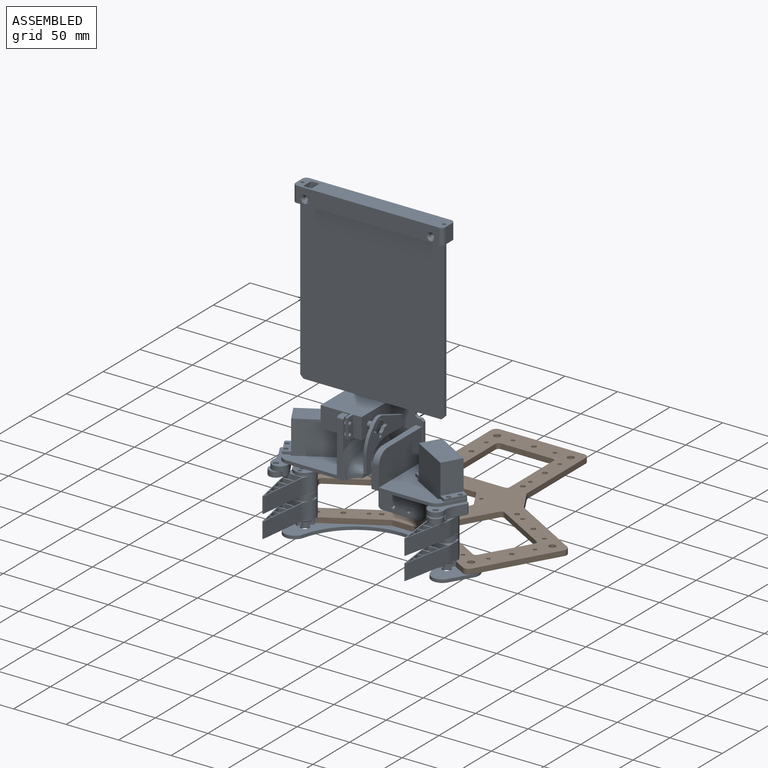
[diagram: assembled view]
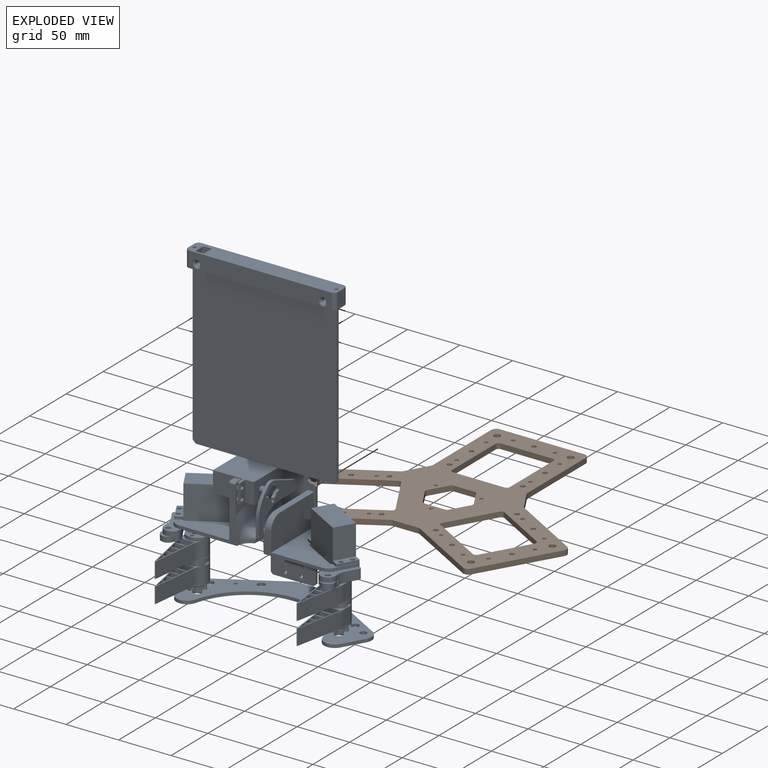
[diagram: exploded view]
GUIDED TOUR — FREECAD ASSEMBLY "actuator"

This assembly has 2 components, labeled P0..P1 below (a component is one placed body or linked part; the same part can appear more than once), held together by 0 modeled joints plus 1 derived contact edge. A joint is a constraint between two components; its type names the relative motion it leaves free:
  CONTACT — a derived adjacency edge — the two components touch in the source model (clearance under 2% of the assembly's diagonal); it is measured from the geometry, not a modeled constraint.
Axis/direction vectors are unit vectors and 'through' points are millimeter coordinates, both in the assembly's world frame.

MATES
  1. CONTACT "contact_0_1": P0 <-> P1, contact direction (0.000, 0.000, -1.000) through (-80.98, -90.70, -5.00) mm (derived from contact, not a modeled constraint)

ASSEMBLY ORDER
  1. P1 — the base component [order verified]
  2. P0 [order verified]
Order-tag legend:
  [order verified] — this step's position reverses a verified removal order: the component was checked to insert without passing through the ones already placed.

Of the 2 components, 1 carries a construction recipe — the FreeCAD feature program (sketches with constraints, then the solid features that consume them) that regenerates the part from scratch, quoted from this document or from the linked companion document it references; the rest are supplied as boundary geometry only. The tour below walks the components in assembly order: each is shown spotlighted twice — in the assembled view, then in the exploded view, where a leader line traces a displaced component back to its assembled socket (components that stay in place when exploded have no leader line; saturated green if recipe-attached, orange if geometry-only; every other component desaturated gray) — followed by its recipe or geometry summary and the mates that hold it.
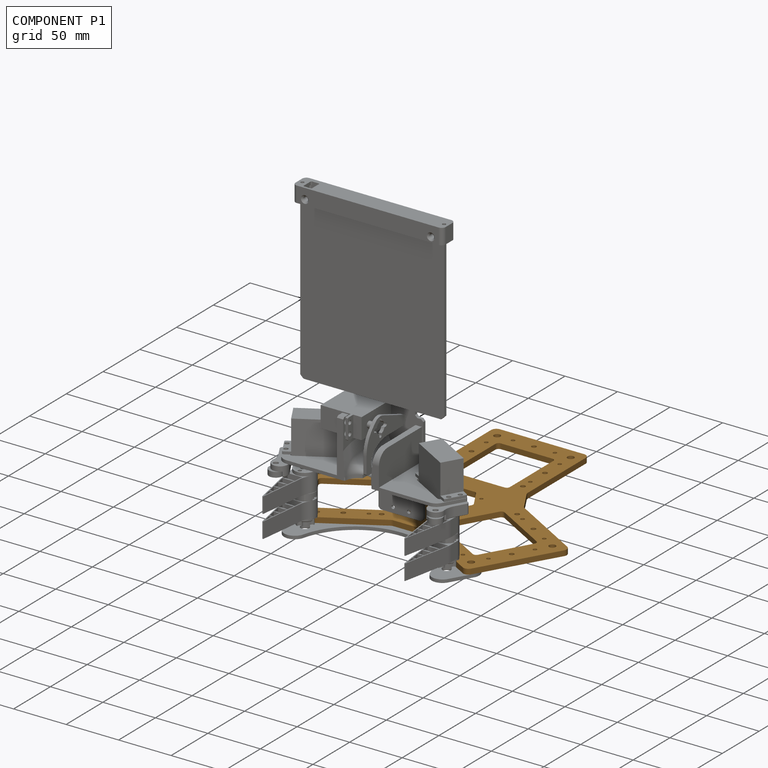
[diagram: component P1 — assembled]
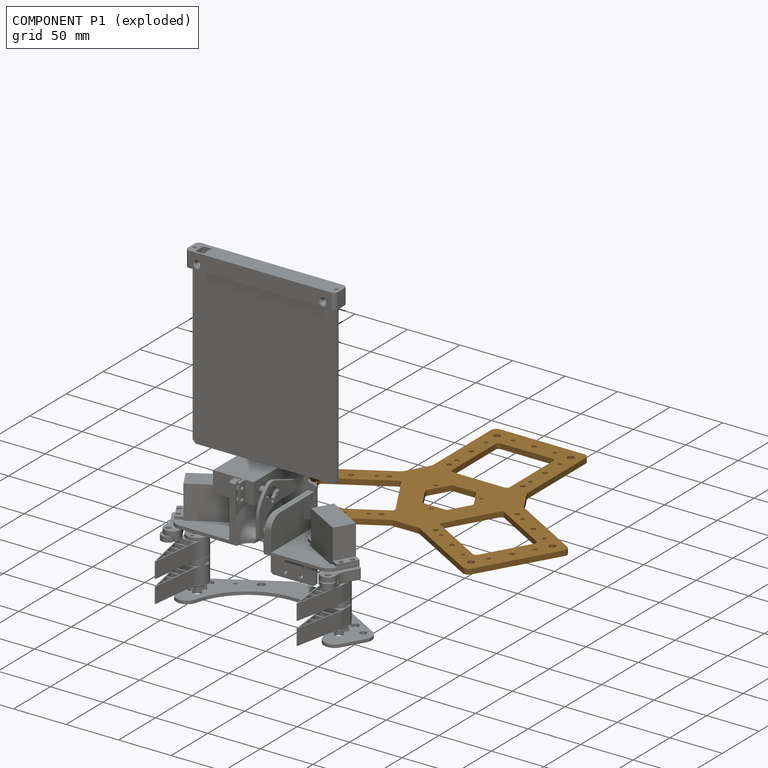
[diagram: component P1 — exploded]
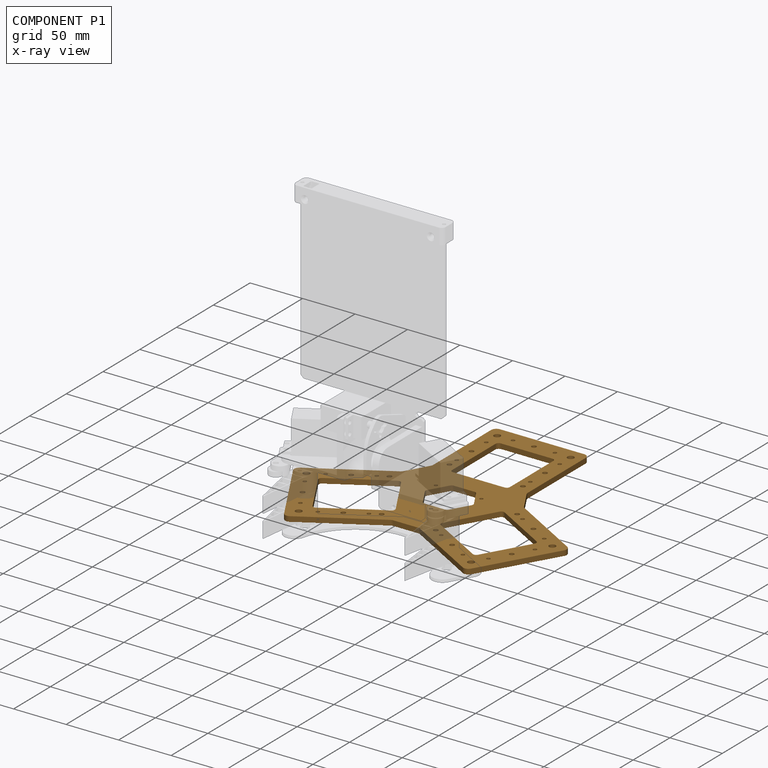
[diagram: component P1 — x-ray view]
COMPONENT P1 — geometry summary ("Semelle001"; no construction recipe available for this part):
  bounding box: 259.6 x 226.1 x 5.0 mm
  tessellated surface: 16,824 triangles
  volume: 90416 mm^3 (31% of its bounding box)
  symmetry: 2-fold rotationally symmetric about the y axis; mirror-symmetric across its x mid-plane
Held by: resting contact with P0 (derived edge).
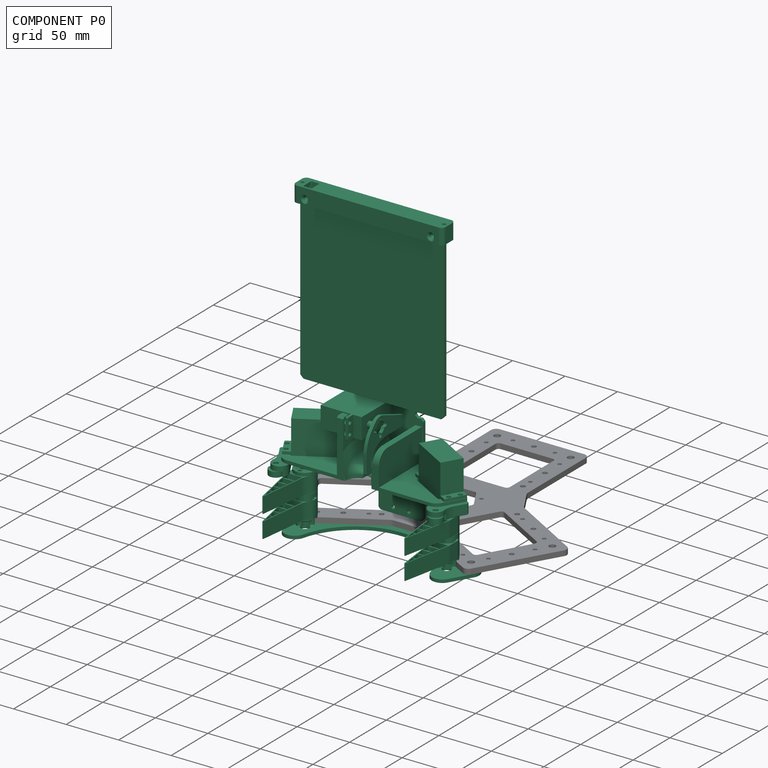
[diagram: component P0 — assembled]
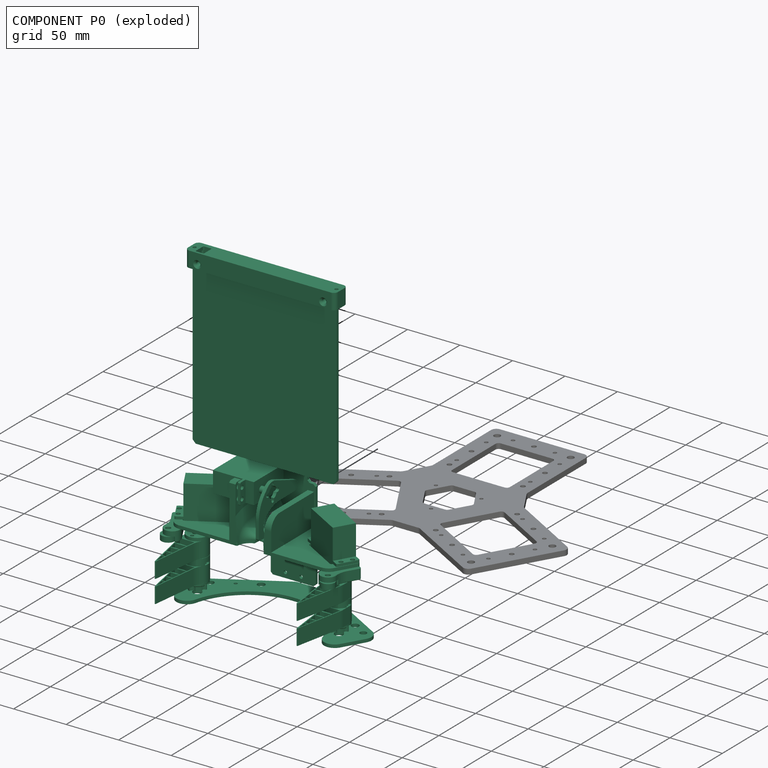
[diagram: component P0 — exploded]
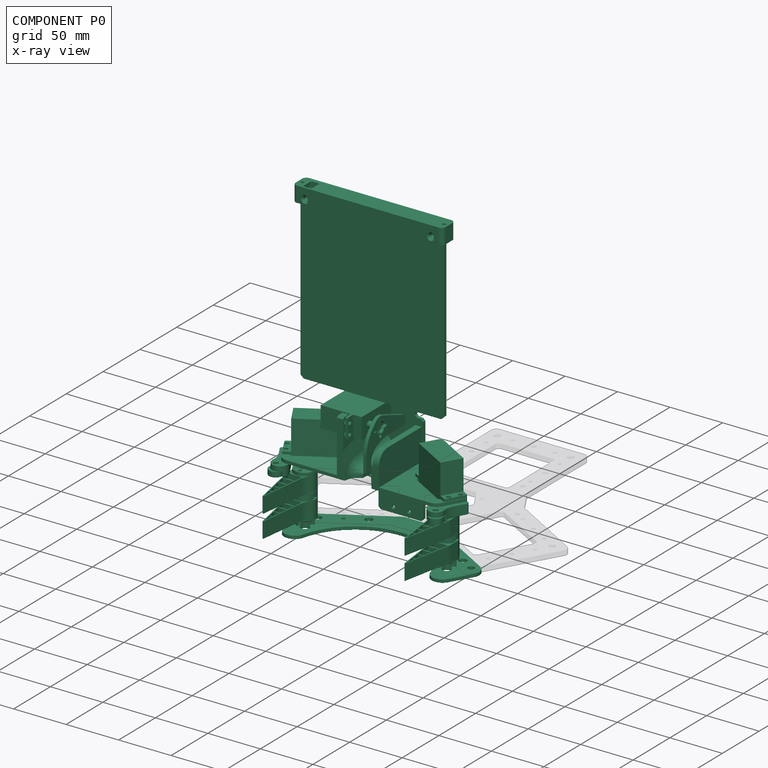
[diagram: component P0 — x-ray view]
COMPONENT P0 — recipe-attached ("AssembledActuator", modeled in this document).
Held by: resting contact with P1 (derived edge).
Construction recipe (the document's own serialized feature program — sketch geometry with constraints, then the solid features built on it; lengths are millimeters unless a unit is written):

FEATURE [Part::SubShapeBinder] Import002  label="Import002(Fillet011)"
  BindCopyOnChange = 0
  BindMode = 0
  ClaimChildren = false
  Context = -> Assembly [Body038.Import002.]
  EdgeTolerance = 1e-06
  FillStyle = 0
  Fuse = false
  InvalidShape = false
  MakeFace = false
  MergeEdges = true
  OffsetFill = false
  OffsetIntersection = false
  OffsetJoinType = 0
  OffsetOpenResult = false
  Outline = false
  PartialLoad = false
  Relative = true
  SplitEdges = false
  Support = -> [Link[Fillet011.]]
  TightBound = false
  TreeRank = 96
  ValidateShape = true
  _Version = 8
FEATURE [Sketcher::SketchObject] Sketch074
  ArcFitTolerance = 1e-06
  AttachmentSupport = -> [XY_Plane046]
  ExternalBSplineMaxDegree = 0
  ExternalBSplineTolerance = 0
  ExternalGeometry = -> [Import002]
  FullyConstrained = true
  InternalTolerance = 1e-06
  InvalidShape = false
  MakeInternals = false
  MapMode = 5
  Support = -> [XY_Plane046]
  TreeRank = 95
  ValidateShape = true
  sketch-geometry (20):
    g0: Circle [constr] CenterX=-1.73931e-11 CenterY=-128.13 CenterZ=0 NormalX=0 NormalY=0 NormalZ=1 AngleXU=0 Radius=62.5
    g1: ArcOfCircle CenterX=-1.73931e-11 CenterY=-128.13 CenterZ=0 NormalX=0 NormalY=0 NormalZ=1 AngleXU=0 Radius=62.5 StartAngle=0.254647 EndAngle=2.88695
    g2: Circle CenterX=-51.782 CenterY=-70.3109 CenterZ=0 NormalX=0 NormalY=0 NormalZ=1 AngleXU=0 Radius=1.6
    g3: Circle CenterX=51.782 CenterY=-70.3109 CenterZ=0 NormalX=0 NormalY=0 NormalZ=1 AngleXU=0 Radius=1.6
    g4: LineSegment StartX=-95.3692 StartY=-86.8157 StartZ=0 EndX=-15 EndY=-40.4145 EndZ=0
    g5: LineSegment StartX=-15 StartY=-40.4145 StartZ=0 EndX=15 EndY=-40.4145 EndZ=0
    g6: LineSegment StartX=15 StartY=-40.4145 StartZ=0 EndX=95.3692 EndY=-86.8157 EndZ=0
    g7: LineSegment StartX=-95.3692 StartY=-86.8157 StartZ=0 EndX=-79.1483 EndY=-114.911 EndZ=0
    g8: LineSegment StartX=79.1483 StartY=-114.911 StartZ=0 EndX=95.3692 EndY=-86.8157 EndZ=0
    g9: Circle CenterX=-69.1025 CenterY=-80.3109 CenterZ=0 NormalX=0 NormalY=0 NormalZ=1 AngleXU=0 Radius=3.5
    g10: Circle CenterX=-34.4615 CenterY=-60.3109 CenterZ=0 NormalX=0 NormalY=0 NormalZ=1 AngleXU=0 Radius=3.5
    g11: Circle CenterX=34.4615 CenterY=-60.3109 CenterZ=0 NormalX=0 NormalY=0 NormalZ=1 AngleXU=0 Radius=3.5
    g12: Circle CenterX=69.1025 CenterY=-80.3109 CenterZ=0 NormalX=0 NormalY=0 NormalZ=1 AngleXU=0 Radius=3.5
    g13: ArcOfCircle CenterX=-70.3341 CenterY=-109.822 CenterZ=0 NormalX=0 NormalY=0 NormalZ=1 AngleXU=0 Radius=10.1778 StartAngle=3.66519 EndAngle=6.02854
    g14: ArcOfCircle CenterX=70.3341 CenterY=-109.822 CenterZ=0 NormalX=0 NormalY=0 NormalZ=1 AngleXU=0 Radius=10.1778 StartAngle=3.39624 EndAngle=5.75959
    g15: LineSegment [constr] StartX=-70.3341 StartY=-109.822 StartZ=0 EndX=-70.3341 EndY=-120 EndZ=0
    g16: Circle CenterX=-67.4638 CenterY=-100.149 CenterZ=0 NormalX=0 NormalY=0 NormalZ=1 AngleXU=0 Radius=4
    g17: LineSegment [constr] StartX=-67.4638 StartY=-100.149 StartZ=0 EndX=-71.4638 EndY=-93.2211 EndZ=0
    g18: LineSegment [constr] StartX=-67.4638 StartY=-100.149 StartZ=0 EndX=-82.6192 EndY=-108.899 EndZ=0
    g19: Circle CenterX=67.4638 CenterY=-100.149 CenterZ=0 NormalX=0 NormalY=0 NormalZ=1 AngleXU=0 Radius=4
  constraints (50):
    c: Diameter(g0) = 125
    c: Coincident(g1,g0)
    c: PointOnObject(g1,g0)
    c: Coincident(g2,g-5)
    c: Coincident(g3,g-6)
    c: Equal(g3,g2)
    c: Diameter(g2) = 3.2
    c: Coincident(g5,g4)
    c: Coincident(g6,g5)
    c: Parallel(g4,g-3)
    c: Parallel(g-4,g6)
    c: Equal(g4,g6)
    c: PointOnObject(g7,g-7)
    c: PointOnObject(g-7,g7)
    c: Coincident(g4,g7)
    c: Symmetric(g4,g5,g-2)
    c: Coincident(g8,g6)
    c: PointOnObject(g-8,g8)
    c: PointOnObject(g-15,g4)
    c: DistanceX(g5,g5) = 30
    c: Coincident(g9,g-10)
    c: Coincident(g10,g-9)
    c: Coincident(g11,g-11)
    c: Coincident(g12,g-12)
    c: Equal(g12,g11)
    c: Equal(g12,g10)
    c: Equal(g12,g9)
    c: Diameter(g12) = 7
    c: PointOnObject(g1,g-2)
    c: Horizontal(g1,g1)
    c: Tangent(g14,g8) = -1.5708
    c: Tangent(g14,g1) = 1.5708
    c: Tangent(g13,g7) = -1.5708
    c: Tangent(g13,g1) = 1.5708
    c: DistanceY(g1) = -128.13
    c: Coincident(g15,g13)
    c: PointOnObject(g15,g13)
    c: Vertical(g15)
    c: DistanceY(g15,g-1) = 120
    c: Coincident(g17,g16)
    c: PointOnObject(g17,g-3)
    c: Perpendicular(g-3,g17)
    c: Distance(g17) = 8
    c: Coincident(g18,g16)
    c: PointOnObject(g18,g7)
    c: Perpendicular(g7,g18)
    c: Distance(g18) = 17.5
    c: Diameter(g16) = 8
    c: Equal(g19,g16)
    c: Symmetric(g19,g16,g-2)
FEATURE [PartDesign::Pad] Pad043
  AddSubType = 0
  AlongSketchNormal = false
  AutoTaperInnerAngle = false
  CheckUpToFaceLimits = true
  ClaimChildren = false
  Direction = (0,0,1)
  Fit = 0
  FitJoin = 0
  InnerFit = 0
  InnerFitJoin = 0
  InvalidShape = false
  Length = 3
  Length2 = 100
  Linearize = true
  NewSolid = false
  Profile = -> Sketch074
  Refine = true
  Reversed = true
  Suppress = false
  TaperInnerAngle = 0
  TaperInnerAngleRev = 0
  TreeRank = 97
  Type = 0
  ValidateShape = true
  _ProfileBasedVersion = 1
FEATURE [PartDesign::Fillet] Fillet
  AddSubType = 0
  Base = -> Pad043 [Edge8,Edge11,Edge14,Edge17]
  BaseFeature = -> Pad043
  InvalidShape = false
  NewSolid = false
  Radius = 10
  Refine = true
  SupportTransform = false
  Suppress = false
  TreeRank = 131
  ValidateShape = true
FEATURE [PartDesign::Body] Body038  label="OutilSemelle"
  AutoGroupSolids = false
  ClaimAllChildren = false
  ExportMode = 0
  Group = -> [Sketch074,Import002,Pad043,Fillet]
  InvalidShape = false
  Origin = -> Origin058
  Placement = pos=(0,0,-5) rot=(0,0,1;0rad)
  SingleSolid = true
  Tip = -> Fillet
  TreeRank = 111
  ValidateShape = true
  _ExportChildren = -> [Import002,Pad043,Fillet]
  _GroupVersion = 1
PROVENANCE & LICENSES
Assembly and component geometry: a FreeCAD (.FCStd) document from a public repository crawl; components, placements and joints were extracted with FreeCAD and each solid tessellated.
Construction recipes: the document's own serialized feature recipes (and, for linked parts, the recipes of companion documents from the same project).
License: mit.
Joints: native FreeCAD joints and A2plus constraints are mapped to standard mate types; edges marked 'derived from contact' connect touching components and are measured from the geometry, not modeled.
Verification: 1 of this assembly's 2 components carries a construction recipe (1 from this document itself); the rest are geometry-only. Every component's tessellation passed the extraction mesh gates (mesh-volume checksum against the B-rep where available, bounding-box inflation <= 2%).
Renders: orthographic iso camera (az 35 / el 25); the floor grid conveys scale (grid pitch printed in each image; no ruler). In the exploded view each component is displaced by its stored offset vector: the offsets alone carry the explosion direction (mate normal/axis signs are not orientation cues and do not encode it), and separation distances are assigned per mate-chain, not proportionally to assembly-order depth.
